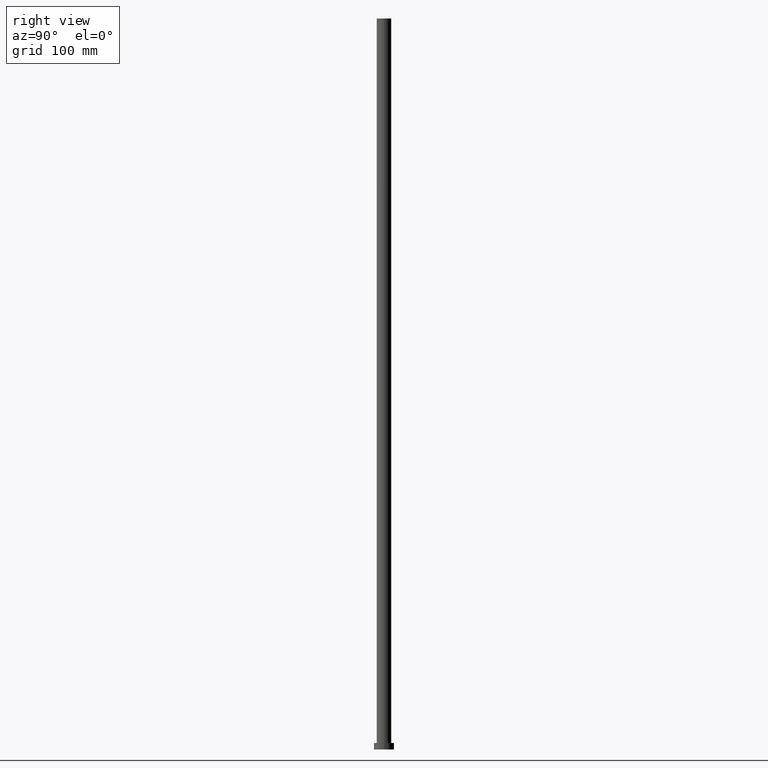
[diagram: clean part render]
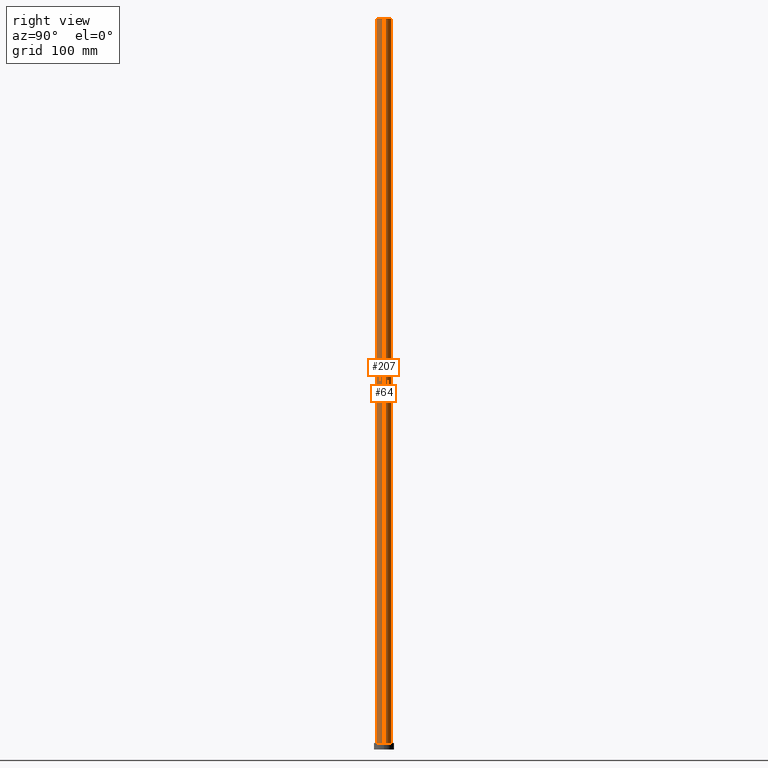
[diagram: same view with one multi-face feature highlighted, each face labeled with its STEP entity id]
A machine part, right view. The highlighted faces form ONE feature: a constant-radius fillet chain: 2 tangent blend faces with common blend radius 8 mm. The faces share edges in the B-rep.
Their STEP definitions:
[1] entity #64 (Cylinder):
#9 = DIRECTION ( 'NONE',  ( -0.000000000000000000, -0.000000000000000000, -1.000000000000000000 ) ) ;
#11 = DIRECTION ( 'NONE',  ( -1.000000000000000000, 0.000000000000000000, 0.000000000000000000 ) ) ;
#13 = VECTOR ( 'NONE', #87, 1000.000000000000000 ) ;
#24 = EDGE_LOOP ( 'NONE', ( #240, #238, #41, #223 ) ) ;
#26 = LINE ( 'NONE', #93, #13 ) ;
#34 = CARTESIAN_POINT ( 'NONE',  ( -8.000000000000000000, 0.000000000000000000, 800.0000000000000000 ) ) ;
#36 = AXIS2_PLACEMENT_3D ( 'NONE', #47, #66, #131 ) ;
#38 = EDGE_CURVE ( 'NONE', #46, #120, #105, .T. ) ;
#41 = ORIENTED_EDGE ( 'NONE', *, *, #112, .T. ) ;
#46 = VERTEX_POINT ( 'NONE', #185 ) ;
#47 = CARTESIAN_POINT ( 'NONE',  ( 0.000000000000000000, 0.000000000000000000, 7.000000000000000000 ) ) ;
#49 = CARTESIAN_POINT ( 'NONE',  ( 0.000000000000000000, 0.000000000000000000, 800.0000000000000000 ) ) ;
#53 = FACE_OUTER_BOUND ( 'NONE', #24, .T. ) ;
#54 = CARTESIAN_POINT ( 'NONE',  ( -8.000000000000000000, 0.000000000000000000, 7.000000000000000000 ) ) ;
#64 = ADVANCED_FACE ( 'NONE', ( #53 ), #169, .T. ) ;
#66 = DIRECTION ( 'NONE',  ( 0.000000000000000000, 0.000000000000000000, 1.000000000000000000 ) ) ;
#71 = AXIS2_PLACEMENT_3D ( 'NONE', #165, #205, #227 ) ;
#87 = DIRECTION ( 'NONE',  ( -0.000000000000000000, -0.000000000000000000, -1.000000000000000000 ) ) ;
#93 = CARTESIAN_POINT ( 'NONE',  ( 8.000000000000000000, 9.797174393178825657E-16, 800.0000000000000000 ) ) ;
#105 = CIRCLE ( 'NONE', #71, 8.000000000000000000 ) ;
#111 = CARTESIAN_POINT ( 'NONE',  ( 8.000000000000000000, 9.797174393178825657E-16, 7.000000000000000000 ) ) ;
#112 = EDGE_CURVE ( 'NONE', #199, #220, #244, .T. ) ;
#118 = EDGE_CURVE ( 'NONE', #120, #220, #208, .T. ) ;
#120 = VERTEX_POINT ( 'NONE', #34 ) ;
#130 = DIRECTION ( 'NONE',  ( -0.000000000000000000, -0.000000000000000000, -1.000000000000000000 ) ) ;
#131 = DIRECTION ( 'NONE',  ( 1.000000000000000000, 0.000000000000000000, 0.000000000000000000 ) ) ;
#138 = AXIS2_PLACEMENT_3D ( 'NONE', #49, #130, #11 ) ;
#144 = CARTESIAN_POINT ( 'NONE',  ( -8.000000000000000000, 0.000000000000000000, 800.0000000000000000 ) ) ;
#151 = EDGE_CURVE ( 'NONE', #46, #199, #26, .T. ) ;
#165 = CARTESIAN_POINT ( 'NONE',  ( 0.000000000000000000, 0.000000000000000000, 800.0000000000000000 ) ) ;
#169 = CYLINDRICAL_SURFACE ( 'NONE', #138, 8.000000000000000000 ) ;
#185 = CARTESIAN_POINT ( 'NONE',  ( 8.000000000000000000, 9.797174393178825657E-16, 800.0000000000000000 ) ) ;
#198 = VECTOR ( 'NONE', #9, 1000.000000000000000 ) ;
#199 = VERTEX_POINT ( 'NONE', #111 ) ;
#205 = DIRECTION ( 'NONE',  ( 0.000000000000000000, 0.000000000000000000, 1.000000000000000000 ) ) ;
#208 = LINE ( 'NONE', #144, #198 ) ;
#220 = VERTEX_POINT ( 'NONE', #54 ) ;
#223 = ORIENTED_EDGE ( 'NONE', *, *, #118, .F. ) ;
#227 = DIRECTION ( 'NONE',  ( 1.000000000000000000, 0.000000000000000000, 0.000000000000000000 ) ) ;
#238 = ORIENTED_EDGE ( 'NONE', *, *, #151, .T. ) ;
#240 = ORIENTED_EDGE ( 'NONE', *, *, #38, .F. ) ;
#244 = CIRCLE ( 'NONE', #36, 8.000000000000000000 ) ;
[2] entity #207 (Cylinder):
#2 = EDGE_LOOP ( 'NONE', ( #85, #157, #143, #61 ) ) ;
#9 = DIRECTION ( 'NONE',  ( -0.000000000000000000, -0.000000000000000000, -1.000000000000000000 ) ) ;
#13 = VECTOR ( 'NONE', #87, 1000.000000000000000 ) ;
#26 = LINE ( 'NONE', #93, #13 ) ;
#34 = CARTESIAN_POINT ( 'NONE',  ( -8.000000000000000000, 0.000000000000000000, 800.0000000000000000 ) ) ;
#46 = VERTEX_POINT ( 'NONE', #185 ) ;
#54 = CARTESIAN_POINT ( 'NONE',  ( -8.000000000000000000, 0.000000000000000000, 7.000000000000000000 ) ) ;
#61 = ORIENTED_EDGE ( 'NONE', *, *, #124, .T. ) ;
#70 = DIRECTION ( 'NONE',  ( 0.000000000000000000, 0.000000000000000000, 1.000000000000000000 ) ) ;
#79 = CARTESIAN_POINT ( 'NONE',  ( 0.000000000000000000, 0.000000000000000000, 800.0000000000000000 ) ) ;
#85 = ORIENTED_EDGE ( 'NONE', *, *, #151, .F. ) ;
#87 = DIRECTION ( 'NONE',  ( -0.000000000000000000, -0.000000000000000000, -1.000000000000000000 ) ) ;
#88 = CIRCLE ( 'NONE', #141, 8.000000000000000000 ) ;
#90 = DIRECTION ( 'NONE',  ( 0.000000000000000000, 0.000000000000000000, 1.000000000000000000 ) ) ;
#91 = CARTESIAN_POINT ( 'NONE',  ( 0.000000000000000000, 0.000000000000000000, 800.0000000000000000 ) ) ;
#93 = CARTESIAN_POINT ( 'NONE',  ( 8.000000000000000000, 9.797174393178825657E-16, 800.0000000000000000 ) ) ;
#95 = FACE_OUTER_BOUND ( 'NONE', #2, .T. ) ;
#111 = CARTESIAN_POINT ( 'NONE',  ( 8.000000000000000000, 9.797174393178825657E-16, 7.000000000000000000 ) ) ;
#118 = EDGE_CURVE ( 'NONE', #120, #220, #208, .T. ) ;
#120 = VERTEX_POINT ( 'NONE', #34 ) ;
#123 = AXIS2_PLACEMENT_3D ( 'NONE', #91, #90, #167 ) ;
#124 = EDGE_CURVE ( 'NONE', #220, #199, #88, .T. ) ;
#136 = EDGE_CURVE ( 'NONE', #120, #46, #221, .T. ) ;
#141 = AXIS2_PLACEMENT_3D ( 'NONE', #247, #70, #230 ) ;
#143 = ORIENTED_EDGE ( 'NONE', *, *, #118, .T. ) ;
#144 = CARTESIAN_POINT ( 'NONE',  ( -8.000000000000000000, 0.000000000000000000, 800.0000000000000000 ) ) ;
#151 = EDGE_CURVE ( 'NONE', #46, #199, #26, .T. ) ;
#156 = AXIS2_PLACEMENT_3D ( 'NONE', #79, #194, #175 ) ;
#157 = ORIENTED_EDGE ( 'NONE', *, *, #136, .F. ) ;
#167 = DIRECTION ( 'NONE',  ( 1.000000000000000000, 0.000000000000000000, 0.000000000000000000 ) ) ;
#175 = DIRECTION ( 'NONE',  ( -1.000000000000000000, 0.000000000000000000, 0.000000000000000000 ) ) ;
#185 = CARTESIAN_POINT ( 'NONE',  ( 8.000000000000000000, 9.797174393178825657E-16, 800.0000000000000000 ) ) ;
#194 = DIRECTION ( 'NONE',  ( -0.000000000000000000, -0.000000000000000000, -1.000000000000000000 ) ) ;
#198 = VECTOR ( 'NONE', #9, 1000.000000000000000 ) ;
#199 = VERTEX_POINT ( 'NONE', #111 ) ;
#207 = ADVANCED_FACE ( 'NONE', ( #95 ), #252, .T. ) ;
#208 = LINE ( 'NONE', #144, #198 ) ;
#220 = VERTEX_POINT ( 'NONE', #54 ) ;
#221 = CIRCLE ( 'NONE', #123, 8.000000000000000000 ) ;
#230 = DIRECTION ( 'NONE',  ( 1.000000000000000000, 0.000000000000000000, 0.000000000000000000 ) ) ;
#247 = CARTESIAN_POINT ( 'NONE',  ( 0.000000000000000000, 0.000000000000000000, 7.000000000000000000 ) ) ;
#252 = CYLINDRICAL_SURFACE ( 'NONE', #156, 8.000000000000000000 ) ;